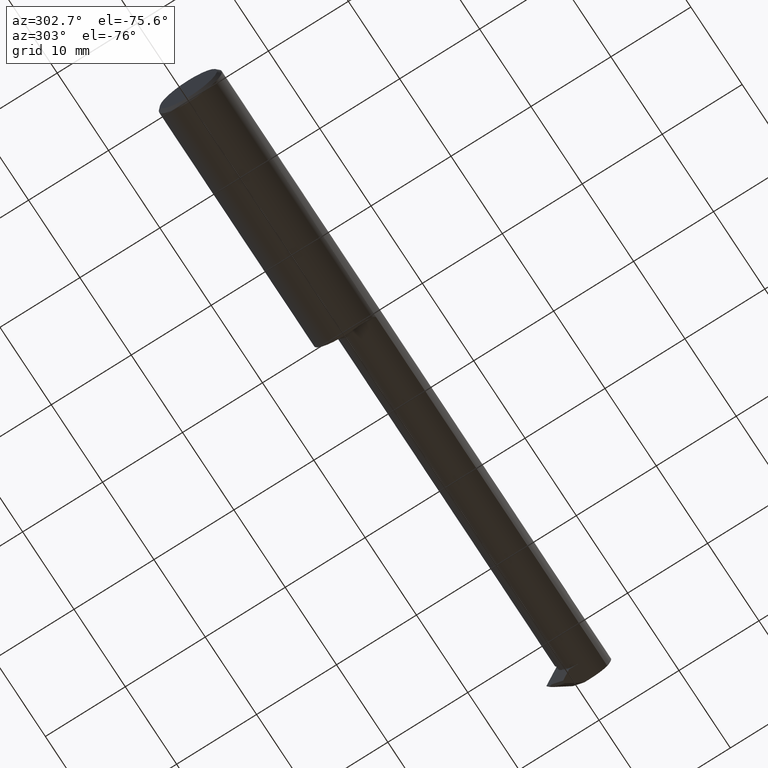
[diagram: clean part render]
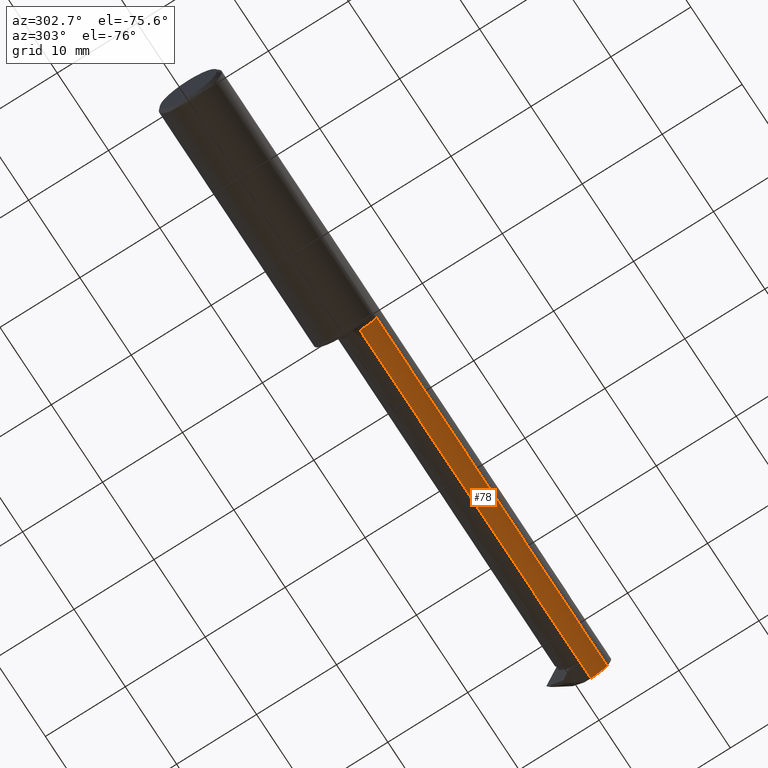
[diagram: same view with one face highlighted and labeled with its STEP entity id]
A machine part, auxiliary view. The second image highlights one B-rep face of the part: STEP entity #78.
In plain terms, the highlighted cylindrical surface (edge-blend (fillet) strip) has radius 2.8194 mm, axis along (-1, -0, -0).
Its self-contained STEP definition (entity closure, byte-faithful):
#9 = ORIENTED_EDGE ( 'NONE', *, *, #690, .T. ) ;
#36 = LINE ( 'NONE', #773, #617 ) ;
#59 = EDGE_CURVE ( 'NONE', #383, #552, #36, .T. ) ;
#73 = CARTESIAN_POINT ( 'NONE',  ( 3.000000000000000444, -0.1368622504537203854, -0.07507286061382703601 ) ) ;
#78 = ADVANCED_FACE ( 'NONE', ( #709 ), #128, .T. ) ;
#110 = DIRECTION ( 'NONE',  ( -1.000000000000000000, -0.000000000000000000, -0.000000000000000000 ) ) ;
#128 = CYLINDRICAL_SURFACE ( 'NONE', #719, 0.1110000000000000014 ) ;
#157 = DIRECTION ( 'NONE',  ( 0.000000000000000000, 0.000000000000000000, -1.000000000000000000 ) ) ;
#173 = EDGE_CURVE ( 'NONE', #733, #887, #555, .T. ) ;
#181 = ORIENTED_EDGE ( 'NONE', *, *, #59, .F. ) ;
#183 = LINE ( 'NONE', #694, #363 ) ;
#218 = VERTEX_POINT ( 'NONE', #793 ) ;
#248 = DIRECTION ( 'NONE',  ( -1.000000000000000000, -0.000000000000000000, -0.000000000000000000 ) ) ;
#265 = CARTESIAN_POINT ( 'NONE',  ( 2.919930999995319798, -0.05510000000000081499, -0.1109999999999999876 ) ) ;
#325 = ORIENTED_EDGE ( 'NONE', *, *, #798, .F. ) ;
#338 = DIRECTION ( 'NONE',  ( -1.000000000000000000, -0.000000000000000000, -0.000000000000000000 ) ) ;
#339 = CARTESIAN_POINT ( 'NONE',  ( 3.000000000000000444, -0.05510000000000080111, -0.1109999999999999737 ) ) ;
#360 = DIRECTION ( 'NONE',  ( 0.000000000000000000, 0.000000000000000000, 1.000000000000000000 ) ) ;
#363 = VECTOR ( 'NONE', #110, 39.37007874015748143 ) ;
#365 = CARTESIAN_POINT ( 'NONE',  ( 3.000000000000000444, -0.05509999999999999620, 0.000000000000000000 ) ) ;
#374 = EDGE_LOOP ( 'NONE', ( #181, #325, #569, #9, #715 ) ) ;
#383 = VERTEX_POINT ( 'NONE', #265 ) ;
#389 = LINE ( 'NONE', #889, #618 ) ;
#393 = CARTESIAN_POINT ( 'NONE',  ( 1.230000000000000426, -0.05509999999999999620, 0.000000000000000000 ) ) ;
#394 = AXIS2_PLACEMENT_3D ( 'NONE', #365, #667, #670 ) ;
#441 = CIRCLE ( 'NONE', #693, 0.1110000000000000014 ) ;
#528 = DIRECTION ( 'NONE',  ( 1.000000000000000000, 0.000000000000000000, 0.000000000000000000 ) ) ;
#552 = VERTEX_POINT ( 'NONE', #873 ) ;
#555 = CIRCLE ( 'NONE', #394, 0.1109999999999999876 ) ;
#569 = ORIENTED_EDGE ( 'NONE', *, *, #173, .F. ) ;
#617 = VECTOR ( 'NONE', #338, 39.37007874015748143 ) ;
#618 = VECTOR ( 'NONE', #248, 39.37007874015748143 ) ;
#667 = DIRECTION ( 'NONE',  ( 1.000000000000000000, -0.000000000000000000, -0.000000000000000000 ) ) ;
#670 = DIRECTION ( 'NONE',  ( 0.000000000000000000, 0.000000000000000000, 1.000000000000000000 ) ) ;
#684 = EDGE_CURVE ( 'NONE', #218, #552, #441, .T. ) ;
#690 = EDGE_CURVE ( 'NONE', #733, #218, #389, .T. ) ;
#693 = AXIS2_PLACEMENT_3D ( 'NONE', #393, #528, #157 ) ;
#694 = CARTESIAN_POINT ( 'NONE',  ( 3.000000000000000444, -0.05510000000000080111, -0.1109999999999999737 ) ) ;
#709 = FACE_OUTER_BOUND ( 'NONE', #374, .T. ) ;
#715 = ORIENTED_EDGE ( 'NONE', *, *, #684, .T. ) ;
#719 = AXIS2_PLACEMENT_3D ( 'NONE', #724, #731, #360 ) ;
#724 = CARTESIAN_POINT ( 'NONE',  ( 1.205000000000000293, -0.05509999999999999620, 0.000000000000000000 ) ) ;
#731 = DIRECTION ( 'NONE',  ( -1.000000000000000000, -0.000000000000000000, -0.000000000000000000 ) ) ;
#733 = VERTEX_POINT ( 'NONE', #73 ) ;
#773 = CARTESIAN_POINT ( 'NONE',  ( 1.205000000000000293, -0.05509999999999998233, -0.1110000000000000014 ) ) ;
#793 = CARTESIAN_POINT ( 'NONE',  ( 1.230000000000000426, -0.1368622504537204410, -0.07507286061382698050 ) ) ;
#798 = EDGE_CURVE ( 'NONE', #887, #383, #183, .T. ) ;
#873 = CARTESIAN_POINT ( 'NONE',  ( 1.230000000000000426, -0.05509999999999998233, -0.1110000000000000014 ) ) ;
#887 = VERTEX_POINT ( 'NONE', #339 ) ;
#889 = CARTESIAN_POINT ( 'NONE',  ( 2.055500000000000327, -0.1368622504537204410, -0.07507286061382698050 ) ) ;